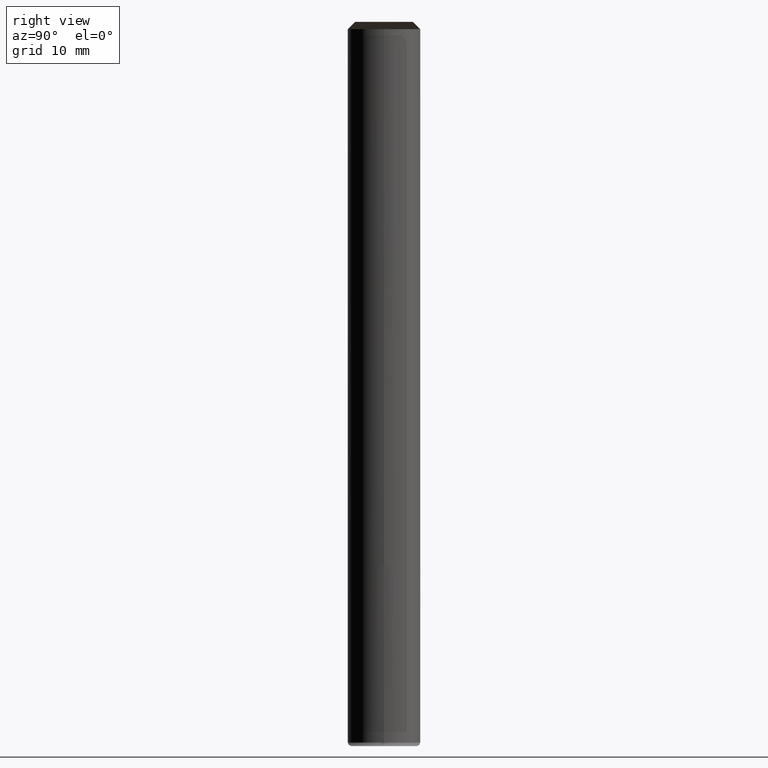
[diagram: clean part render]
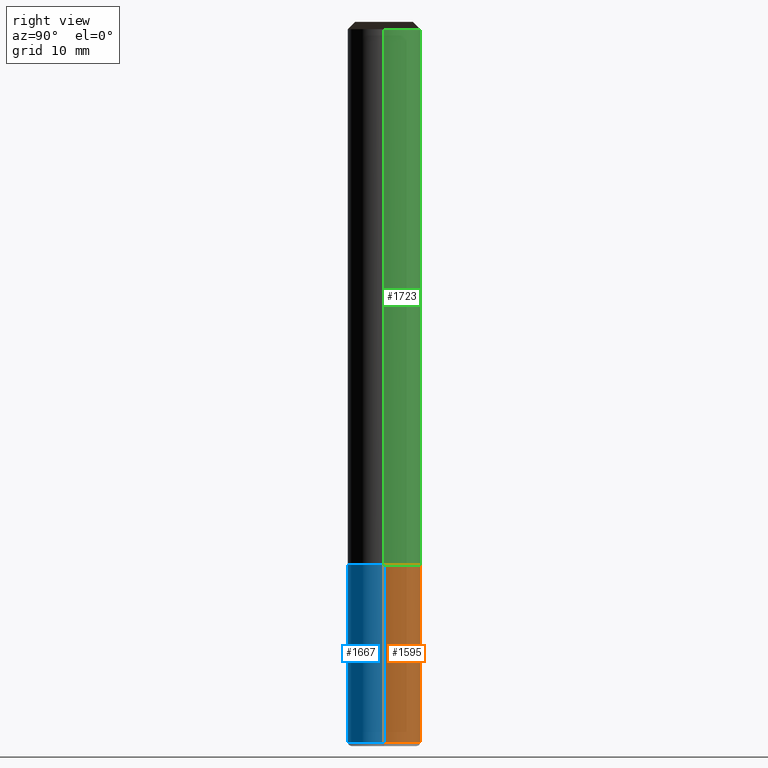
[diagram: same view with three faces highlighted in distinct colors, each labeled with its STEP entity id]
A machine part, right view with three faces highlighted in distinct colors.
Their STEP definitions:

[orange] entity #1595 — the highlighted face is a freeform B-spline surface patch.
#1485=CARTESIAN_POINT('',(3.0,0.0,-14.7));
#1486=CARTESIAN_POINT('',(3.0,3.0,-14.7));
#1487=CARTESIAN_POINT('',(0.0,3.0,-14.7));
#1488=CARTESIAN_POINT('',(-3.0,3.0,-14.7));
#1489=CARTESIAN_POINT('',(-3.0,0.0,-14.7));
#1490=CARTESIAN_POINT('',(3.0,0.0,0.0));
#1491=CARTESIAN_POINT('',(3.0,3.0,0.0));
#1492=CARTESIAN_POINT('',(0.0,3.0,0.0));
#1493=CARTESIAN_POINT('',(-3.0,3.0,0.0));
#1494=CARTESIAN_POINT('',(-3.0,0.0,0.0));
#1576=(
BOUNDED_SURFACE()
B_SPLINE_SURFACE(1,2,(
(#1485,#1486,#1487,#1488,#1489),
(#1490,#1491,#1492,#1493,#1494)
), .UNSPECIFIED.,.F.,.F.,.F.)
B_SPLINE_SURFACE_WITH_KNOTS((2,2),(3,2,3),(
0.0,1.0),(
0.0,0.5,1.0), .UNSPECIFIED.)
GEOMETRIC_REPRESENTATION_ITEM()
RATIONAL_B_SPLINE_SURFACE(((1.0,0.707106781187,1.0,0.707106781187,1.0),
(1.0,0.707106781187,1.0,0.707106781187,1.0)
))
REPRESENTATION_ITEM('')
SURFACE()
);
#1577=(
BOUNDED_CURVE()
B_SPLINE_CURVE(2,(#1490,#1491,#1492,#1493,#1494),.UNSPECIFIED.,.F.,.F.)
B_SPLINE_CURVE_WITH_KNOTS((3,2,3),
(0.0,0.5,1.0),.UNSPECIFIED.)
CURVE()
GEOMETRIC_REPRESENTATION_ITEM()
RATIONAL_B_SPLINE_CURVE((1.0,0.707106781187,1.0,0.707106781187,1.0))
REPRESENTATION_ITEM('')
);
#1578=(
BOUNDED_CURVE()
B_SPLINE_CURVE(1,(#1494,#1489),.UNSPECIFIED.,.F.,.F.)
B_SPLINE_CURVE_WITH_KNOTS((2,2),
(0.0,1.0),.UNSPECIFIED.)
CURVE()
GEOMETRIC_REPRESENTATION_ITEM()
RATIONAL_B_SPLINE_CURVE((1.0,1.0))
REPRESENTATION_ITEM('')
);
#1579=(
BOUNDED_CURVE()
B_SPLINE_CURVE(2,(#1489,#1488,#1487,#1486,#1485),.UNSPECIFIED.,.F.,.F.)
B_SPLINE_CURVE_WITH_KNOTS((3,2,3),
(0.0,0.5,1.0),.UNSPECIFIED.)
CURVE()
GEOMETRIC_REPRESENTATION_ITEM()
RATIONAL_B_SPLINE_CURVE((1.0,0.707106781187,1.0,0.707106781187,1.0))
REPRESENTATION_ITEM('')
);
#1580=(
BOUNDED_CURVE()
B_SPLINE_CURVE(1,(#1485,#1490),.UNSPECIFIED.,.F.,.F.)
B_SPLINE_CURVE_WITH_KNOTS((2,2),
(0.0,1.0),.UNSPECIFIED.)
CURVE()
GEOMETRIC_REPRESENTATION_ITEM()
RATIONAL_B_SPLINE_CURVE((1.0,1.0))
REPRESENTATION_ITEM('')
);
#1581=VERTEX_POINT('',#1485);
#1582=VERTEX_POINT('',#1489);
#1583=VERTEX_POINT('',#1490);
#1584=VERTEX_POINT('',#1494);
#1585=EDGE_CURVE('',#1583,#1584,#1577,.T.);
#1586=EDGE_CURVE('',#1584,#1582,#1578,.T.);
#1587=EDGE_CURVE('',#1582,#1581,#1579,.T.);
#1588=EDGE_CURVE('',#1581,#1583,#1580,.T.);
#1589=ORIENTED_EDGE('',*,*,#1585,.T.);
#1590=ORIENTED_EDGE('',*,*,#1586,.T.);
#1591=ORIENTED_EDGE('',*,*,#1587,.T.);
#1592=ORIENTED_EDGE('',*,*,#1588,.T.);
#1593=EDGE_LOOP('',(#1589,#1590,#1591,#1592));
#1594=FACE_OUTER_BOUND('',#1593,.T.);
#1595=ADVANCED_FACE('',(#1594),#1576,.T.);

[blue] entity #1667 — the highlighted face is a freeform B-spline surface patch.
#1485=CARTESIAN_POINT('',(3.0,0.0,-14.7));
#1489=CARTESIAN_POINT('',(-3.0,0.0,-14.7));
#1490=CARTESIAN_POINT('',(3.0,0.0,0.0));
#1494=CARTESIAN_POINT('',(-3.0,0.0,0.0));
#1508=CARTESIAN_POINT('',(-3.0,-3.0,-14.7));
#1509=CARTESIAN_POINT('',(0.0,-3.0,-14.7));
#1510=CARTESIAN_POINT('',(3.0,-3.0,-14.7));
#1511=CARTESIAN_POINT('',(-3.0,-3.0,0.0));
#1512=CARTESIAN_POINT('',(0.0,-3.0,0.0));
#1513=CARTESIAN_POINT('',(3.0,-3.0,0.0));
#1648=(
BOUNDED_SURFACE()
B_SPLINE_SURFACE(1,2,(
(#1489,#1508,#1509,#1510,#1485),
(#1494,#1511,#1512,#1513,#1490)
), .UNSPECIFIED.,.F.,.F.,.F.)
B_SPLINE_SURFACE_WITH_KNOTS((2,2),(3,2,3),(
0.0,1.0),(
0.0,0.5,1.0), .UNSPECIFIED.)
GEOMETRIC_REPRESENTATION_ITEM()
RATIONAL_B_SPLINE_SURFACE(((1.0,0.707106781187,1.0,0.707106781187,1.0),
(1.0,0.707106781187,1.0,0.707106781187,1.0)
))
REPRESENTATION_ITEM('')
SURFACE()
);
#1649=(
BOUNDED_CURVE()
B_SPLINE_CURVE(1,(#1494,#1489),.UNSPECIFIED.,.F.,.F.)
B_SPLINE_CURVE_WITH_KNOTS((2,2),
(0.0,1.0),.UNSPECIFIED.)
CURVE()
GEOMETRIC_REPRESENTATION_ITEM()
RATIONAL_B_SPLINE_CURVE((1.0,1.0))
REPRESENTATION_ITEM('')
);
#1650=(
BOUNDED_CURVE()
B_SPLINE_CURVE(2,(#1489,#1508,#1509,#1510,#1485),.UNSPECIFIED.,.F.,.F.)
B_SPLINE_CURVE_WITH_KNOTS((3,2,3),
(0.0,0.5,1.0),.UNSPECIFIED.)
CURVE()
GEOMETRIC_REPRESENTATION_ITEM()
RATIONAL_B_SPLINE_CURVE((1.0,0.707106781187,1.0,0.707106781187,1.0))
REPRESENTATION_ITEM('')
);
#1651=(
BOUNDED_CURVE()
B_SPLINE_CURVE(1,(#1485,#1490),.UNSPECIFIED.,.F.,.F.)
B_SPLINE_CURVE_WITH_KNOTS((2,2),
(0.0,1.0),.UNSPECIFIED.)
CURVE()
GEOMETRIC_REPRESENTATION_ITEM()
RATIONAL_B_SPLINE_CURVE((1.0,1.0))
REPRESENTATION_ITEM('')
);
#1652=(
BOUNDED_CURVE()
B_SPLINE_CURVE(2,(#1490,#1513,#1512,#1511,#1494),.UNSPECIFIED.,.F.,.F.)
B_SPLINE_CURVE_WITH_KNOTS((3,2,3),
(0.0,0.5,1.0),.UNSPECIFIED.)
CURVE()
GEOMETRIC_REPRESENTATION_ITEM()
RATIONAL_B_SPLINE_CURVE((1.0,0.707106781187,1.0,0.707106781187,1.0))
REPRESENTATION_ITEM('')
);
#1653=VERTEX_POINT('',#1485);
#1654=VERTEX_POINT('',#1489);
#1655=VERTEX_POINT('',#1490);
#1656=VERTEX_POINT('',#1494);
#1657=EDGE_CURVE('',#1656,#1654,#1649,.T.);
#1658=EDGE_CURVE('',#1654,#1653,#1650,.T.);
#1659=EDGE_CURVE('',#1653,#1655,#1651,.T.);
#1660=EDGE_CURVE('',#1655,#1656,#1652,.T.);
#1661=ORIENTED_EDGE('',*,*,#1657,.T.);
#1662=ORIENTED_EDGE('',*,*,#1658,.T.);
#1663=ORIENTED_EDGE('',*,*,#1659,.T.);
#1664=ORIENTED_EDGE('',*,*,#1660,.T.);
#1665=EDGE_LOOP('',(#1661,#1662,#1663,#1664));
#1666=FACE_OUTER_BOUND('',#1665,.T.);
#1667=ADVANCED_FACE('',(#1666),#1648,.T.);

[green] entity #1723 — the highlighted face is a freeform B-spline surface patch.
#1490=CARTESIAN_POINT('',(3.0,0.0,0.0));
#1491=CARTESIAN_POINT('',(3.0,3.0,0.0));
#1492=CARTESIAN_POINT('',(0.0,3.0,0.0));
#1493=CARTESIAN_POINT('',(-3.0,3.0,0.0));
#1494=CARTESIAN_POINT('',(-3.0,0.0,0.0));
#1514=CARTESIAN_POINT('',(3.0,0.0,44.4));
#1515=CARTESIAN_POINT('',(3.0,3.0,44.4));
#1516=CARTESIAN_POINT('',(0.0,3.0,44.4));
#1517=CARTESIAN_POINT('',(-3.0,3.0,44.4));
#1518=CARTESIAN_POINT('',(-3.0,0.0,44.4));
#1704=(
BOUNDED_SURFACE()
B_SPLINE_SURFACE(1,2,(
(#1490,#1491,#1492,#1493,#1494),
(#1514,#1515,#1516,#1517,#1518)
), .UNSPECIFIED.,.F.,.F.,.F.)
B_SPLINE_SURFACE_WITH_KNOTS((2,2),(3,2,3),(
0.0,1.0),(
0.0,0.5,1.0), .UNSPECIFIED.)
GEOMETRIC_REPRESENTATION_ITEM()
RATIONAL_B_SPLINE_SURFACE(((1.0,0.707106781187,1.0,0.707106781187,1.0),
(1.0,0.707106781187,1.0,0.707106781187,1.0)
))
REPRESENTATION_ITEM('')
SURFACE()
);
#1705=(
BOUNDED_CURVE()
B_SPLINE_CURVE(2,(#1514,#1515,#1516,#1517,#1518),.UNSPECIFIED.,.F.,.F.)
B_SPLINE_CURVE_WITH_KNOTS((3,2,3),
(0.0,0.5,1.0),.UNSPECIFIED.)
CURVE()
GEOMETRIC_REPRESENTATION_ITEM()
RATIONAL_B_SPLINE_CURVE((1.0,0.707106781187,1.0,0.707106781187,1.0))
REPRESENTATION_ITEM('')
);
#1706=(
BOUNDED_CURVE()
B_SPLINE_CURVE(1,(#1518,#1494),.UNSPECIFIED.,.F.,.F.)
B_SPLINE_CURVE_WITH_KNOTS((2,2),
(0.0,1.0),.UNSPECIFIED.)
CURVE()
GEOMETRIC_REPRESENTATION_ITEM()
RATIONAL_B_SPLINE_CURVE((1.0,1.0))
REPRESENTATION_ITEM('')
);
#1707=(
BOUNDED_CURVE()
B_SPLINE_CURVE(2,(#1494,#1493,#1492,#1491,#1490),.UNSPECIFIED.,.F.,.F.)
B_SPLINE_CURVE_WITH_KNOTS((3,2,3),
(0.0,0.5,1.0),.UNSPECIFIED.)
CURVE()
GEOMETRIC_REPRESENTATION_ITEM()
RATIONAL_B_SPLINE_CURVE((1.0,0.707106781187,1.0,0.707106781187,1.0))
REPRESENTATION_ITEM('')
);
#1708=(
BOUNDED_CURVE()
B_SPLINE_CURVE(1,(#1490,#1514),.UNSPECIFIED.,.F.,.F.)
B_SPLINE_CURVE_WITH_KNOTS((2,2),
(0.0,1.0),.UNSPECIFIED.)
CURVE()
GEOMETRIC_REPRESENTATION_ITEM()
RATIONAL_B_SPLINE_CURVE((1.0,1.0))
REPRESENTATION_ITEM('')
);
#1709=VERTEX_POINT('',#1490);
#1710=VERTEX_POINT('',#1494);
#1711=VERTEX_POINT('',#1514);
#1712=VERTEX_POINT('',#1518);
#1713=EDGE_CURVE('',#1711,#1712,#1705,.T.);
#1714=EDGE_CURVE('',#1712,#1710,#1706,.T.);
#1715=EDGE_CURVE('',#1710,#1709,#1707,.T.);
#1716=EDGE_CURVE('',#1709,#1711,#1708,.T.);
#1717=ORIENTED_EDGE('',*,*,#1713,.T.);
#1718=ORIENTED_EDGE('',*,*,#1714,.T.);
#1719=ORIENTED_EDGE('',*,*,#1715,.T.);
#1720=ORIENTED_EDGE('',*,*,#1716,.T.);
#1721=EDGE_LOOP('',(#1717,#1718,#1719,#1720));
#1722=FACE_OUTER_BOUND('',#1721,.T.);
#1723=ADVANCED_FACE('',(#1722),#1704,.T.);